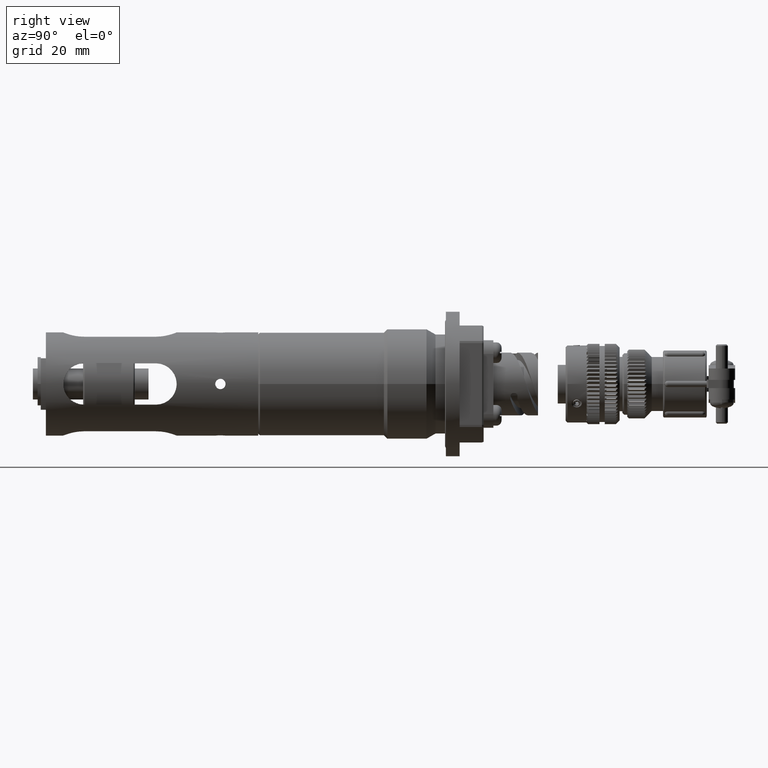
[diagram: clean part render]
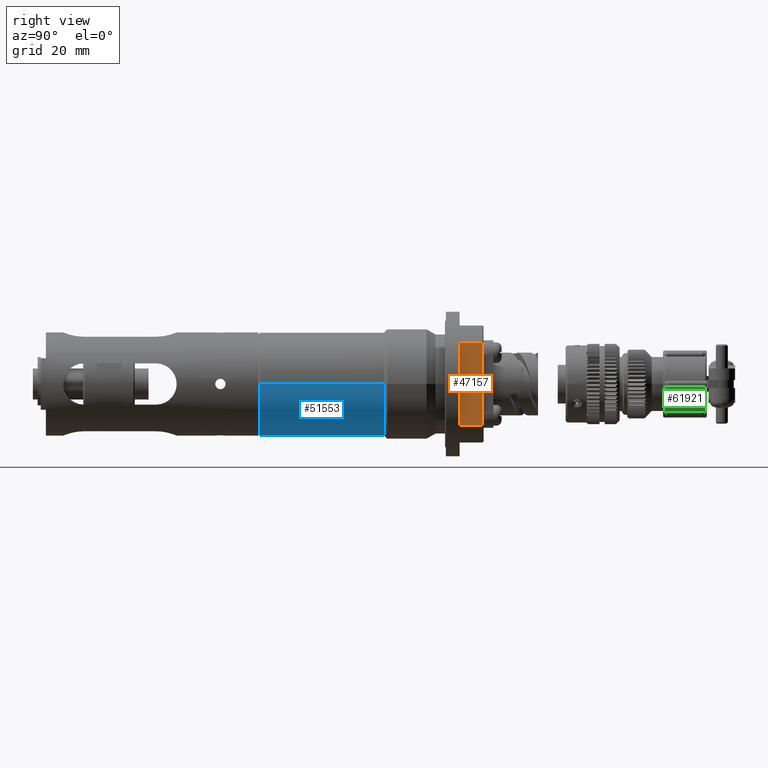
[diagram: same view with three faces highlighted in distinct colors, each labeled with its STEP entity id]
A machine part, right view with three faces highlighted in distinct colors.
Their STEP definitions:

[orange] entity #47157 — the highlighted planar face has unit normal (1, 0, -0).
#425 = LINE ( 'NONE', #68228, #59292 ) ;
#444 = DIRECTION ( 'NONE',  ( 0.0000000000000000000, 1.000000000000000000, 0.0000000000000000000 ) ) ;
#1836 = VERTEX_POINT ( 'NONE', #30222 ) ;
#2936 = DIRECTION ( 'NONE',  ( 0.0000000000000000000, -1.000000000000000000, 0.0000000000000000000 ) ) ;
#3524 = EDGE_CURVE ( 'NONE', #44645, #1836, #40356, .T. ) ;
#5051 = ORIENTED_EDGE ( 'NONE', *, *, #14923, .T. ) ;
#8676 = VECTOR ( 'NONE', #14010, 1000.000000000000000 ) ;
#11076 = ORIENTED_EDGE ( 'NONE', *, *, #31735, .T. ) ;
#13991 = ORIENTED_EDGE ( 'NONE', *, *, #22170, .T. ) ;
#14010 = DIRECTION ( 'NONE',  ( -2.040851148208008245E-16, -0.0000000000000000000, -1.000000000000000000 ) ) ;
#14783 = DIRECTION ( 'NONE',  ( -2.040851148208008245E-16, 0.0000000000000000000, -1.000000000000000000 ) ) ;
#14923 = EDGE_CURVE ( 'NONE', #19964, #64700, #425, .T. ) ;
#18191 = CARTESIAN_POINT ( 'NONE',  ( 17.00000000000000711, 3.999999999999999112, 11.88387772980140156 ) ) ;
#19964 = VERTEX_POINT ( 'NONE', #68073 ) ;
#22170 = EDGE_CURVE ( 'NONE', #64700, #44645, #28583, .T. ) ;
#25536 = VECTOR ( 'NONE', #2936, 1000.000000000000000 ) ;
#28583 = LINE ( 'NONE', #51026, #25536 ) ;
#29561 = CARTESIAN_POINT ( 'NONE',  ( 17.00000000000000711, 10.49999999999998579, 11.88387772980140156 ) ) ;
#29946 = CARTESIAN_POINT ( 'NONE',  ( 17.00000000000000000, 3.999999999999999112, -17.00000000000000355 ) ) ;
#30222 = CARTESIAN_POINT ( 'NONE',  ( 17.00000000000000000, 3.999999999999999112, -11.88387772980136603 ) ) ;
#30359 = CARTESIAN_POINT ( 'NONE',  ( 17.00000000000000000, 3.999999999999999112, -17.00000000000000355 ) ) ;
#31256 = DIRECTION ( 'NONE',  ( 2.040851148208008245E-16, 0.0000000000000000000, 1.000000000000000000 ) ) ;
#31735 = EDGE_CURVE ( 'NONE', #1836, #19964, #53717, .T. ) ;
#33672 = CARTESIAN_POINT ( 'NONE',  ( 17.00000000000000000, 11.00000000000000000, -11.88387772980136603 ) ) ;
#34473 = VECTOR ( 'NONE', #444, 1000.000000000000000 ) ;
#34921 = PLANE ( 'NONE',  #49780 ) ;
#40356 = LINE ( 'NONE', #29946, #8676 ) ;
#44645 = VERTEX_POINT ( 'NONE', #18191 ) ;
#45295 = DIRECTION ( 'NONE',  ( 1.000000000000000000, 0.0000000000000000000, -2.040851148208008245E-16 ) ) ;
#47157 = ADVANCED_FACE ( 'NONE', ( #56997 ), #34921, .T. ) ;
#49780 = AXIS2_PLACEMENT_3D ( 'NONE', #30359, #45295, #14783 ) ;
#51026 = CARTESIAN_POINT ( 'NONE',  ( 17.00000000000000711, 3.999999999999999112, 11.88387772980140156 ) ) ;
#53717 = LINE ( 'NONE', #33672, #34473 ) ;
#56997 = FACE_OUTER_BOUND ( 'NONE', #59515, .T. ) ;
#59292 = VECTOR ( 'NONE', #31256, 1000.000000000000000 ) ;
#59345 = ORIENTED_EDGE ( 'NONE', *, *, #3524, .T. ) ;
#59515 = EDGE_LOOP ( 'NONE', ( #11076, #5051, #13991, #59345 ) ) ;
#64700 = VERTEX_POINT ( 'NONE', #29561 ) ;
#68073 = CARTESIAN_POINT ( 'NONE',  ( 17.00000000000000000, 10.49999999999998579, -11.88387772980136603 ) ) ;
#68228 = CARTESIAN_POINT ( 'NONE',  ( 17.00000000000000000, 10.49999999999998579, -17.00000000000000355 ) ) ;

[blue] entity #51553 — the highlighted cylindrical surface (partial cylindrical patch) has radius 15 mm, axis along (-0, 1, -0).
#206 = EDGE_CURVE ( 'NONE', #41343, #48214, #51985, .T. ) ;
#2528 = DIRECTION ( 'NONE',  ( -1.000000000000000000, -1.156482317317871478E-16, 0.0000000000000000000 ) ) ;
#3475 = LINE ( 'NONE', #46065, #14488 ) ;
#6710 = AXIS2_PLACEMENT_3D ( 'NONE', #47983, #42789, #63856 ) ;
#8334 = AXIS2_PLACEMENT_3D ( 'NONE', #17763, #60325, #2528 ) ;
#9371 = DIRECTION ( 'NONE',  ( -1.224646799147350002E-16, 1.000000000000000000, -0.0000000000000000000 ) ) ;
#9953 = ORIENTED_EDGE ( 'NONE', *, *, #48215, .T. ) ;
#12550 = CYLINDRICAL_SURFACE ( 'NONE', #8334, 15.00000000000000000 ) ;
#13979 = CARTESIAN_POINT ( 'NONE',  ( 15.00000000000001243, -54.00000000000000711, 1.836970198721029983E-15 ) ) ;
#14488 = VECTOR ( 'NONE', #9371, 1000.000000000000000 ) ;
#17763 = CARTESIAN_POINT ( 'NONE',  ( 0.0000000000000000000, 14.88581298024860189, 0.0000000000000000000 ) ) ;
#18099 = FACE_OUTER_BOUND ( 'NONE', #64714, .T. ) ;
#18313 = DIRECTION ( 'NONE',  ( -1.224646799147350002E-16, 1.000000000000000000, -0.0000000000000000000 ) ) ;
#20330 = ORIENTED_EDGE ( 'NONE', *, *, #206, .F. ) ;
#23193 = CARTESIAN_POINT ( 'NONE',  ( 15.00000000000000355, -18.00000000000000000, 1.836970198721029589E-15 ) ) ;
#24255 = CARTESIAN_POINT ( 'NONE',  ( -14.99999999999999112, -54.00000000000000711, 0.0000000000000000000 ) ) ;
#24921 = CARTESIAN_POINT ( 'NONE',  ( 8.436079037292442200E-15, -54.00000000000000711, 0.0000000000000000000 ) ) ;
#28251 = EDGE_CURVE ( 'NONE', #67537, #48214, #3475, .T. ) ;
#31253 = DIRECTION ( 'NONE',  ( -1.224646799147350002E-16, 1.000000000000000000, -0.0000000000000000000 ) ) ;
#36462 = CARTESIAN_POINT ( 'NONE',  ( 15.00000000000000000, 14.88581298024860367, 1.836970198721029589E-15 ) ) ;
#40832 = CARTESIAN_POINT ( 'NONE',  ( -14.99999999999999645, -18.00000000000000711, 0.0000000000000000000 ) ) ;
#41343 = VERTEX_POINT ( 'NONE', #23193 ) ;
#42789 = DIRECTION ( 'NONE',  ( -1.224646799147350002E-16, 1.000000000000000000, -0.0000000000000000000 ) ) ;
#45359 = ORIENTED_EDGE ( 'NONE', *, *, #28251, .T. ) ;
#46065 = CARTESIAN_POINT ( 'NONE',  ( -15.00000000000000000, 14.88581298024860189, 0.0000000000000000000 ) ) ;
#47983 = CARTESIAN_POINT ( 'NONE',  ( 4.027350560361982389E-15, -18.00000000000000355, 0.0000000000000000000 ) ) ;
#48214 = VERTEX_POINT ( 'NONE', #40832 ) ;
#48215 = EDGE_CURVE ( 'NONE', #64904, #67537, #53201, .T. ) ;
#51553 = ADVANCED_FACE ( 'NONE', ( #18099 ), #12550, .T. ) ;
#51653 = LINE ( 'NONE', #36462, #62925 ) ;
#51985 = CIRCLE ( 'NONE', #6710, 15.00000000000000000 ) ;
#52232 = ORIENTED_EDGE ( 'NONE', *, *, #63007, .F. ) ;
#53201 = CIRCLE ( 'NONE', #67416, 15.00000000000000178 ) ;
#60325 = DIRECTION ( 'NONE',  ( -1.224646799147350002E-16, 1.000000000000000000, -0.0000000000000000000 ) ) ;
#62925 = VECTOR ( 'NONE', #31253, 1000.000000000000000 ) ;
#63007 = EDGE_CURVE ( 'NONE', #64904, #41343, #51653, .T. ) ;
#63856 = DIRECTION ( 'NONE',  ( -1.000000000000000000, -2.312964634635742957E-16, 0.0000000000000000000 ) ) ;
#64714 = EDGE_LOOP ( 'NONE', ( #52232, #9953, #45359, #20330 ) ) ;
#64904 = VERTEX_POINT ( 'NONE', #13979 ) ;
#67048 = DIRECTION ( 'NONE',  ( -1.000000000000000000, 0.0000000000000000000, 0.0000000000000000000 ) ) ;
#67416 = AXIS2_PLACEMENT_3D ( 'NONE', #24921, #18313, #67048 ) ;
#67537 = VERTEX_POINT ( 'NONE', #24255 ) ;

[green] entity #61921 — the highlighted cylindrical surface (edge-blend (fillet) strip) has radius 9.8 mm, axis along (-0, 1, -0).
#319 = B_SPLINE_CURVE_WITH_KNOTS ( 'NONE', 3,
 ( #32483, #42538, #10680, #12034, #43225, #53917, #630, #16205, #968, #16557 ),
 .UNSPECIFIED., .F., .F.,
 ( 4, 2, 2, 2, 4 ),
 ( 1.219727444046192488E-19, 0.0003363318376821790366, 0.0006726636753643579648, 0.001008995513046537056, 0.001345327350728715930 ),
 .UNSPECIFIED. ) ;
#630 = CARTESIAN_POINT ( 'NONE',  ( 9.768028886019029855, 64.04211822944506594, -0.7920934178907146350 ) ) ;
#968 = CARTESIAN_POINT ( 'NONE',  ( 9.758673469387751709, 64.35784295236878449, -0.8990506759174090590 ) ) ;
#1272 = CARTESIAN_POINT ( 'NONE',  ( 9.758673469387753485, 64.46999999999997044, -0.8990506759174061724 ) ) ;
#1743 = CARTESIAN_POINT ( 'NONE',  ( 5.308842043080518991, 75.21231819494002480, -8.238123112738909626 ) ) ;
#3287 = VERTEX_POINT ( 'NONE', #31718 ) ;
#4549 = VERTEX_POINT ( 'NONE', #58476 ) ;
#4881 = VERTEX_POINT ( 'NONE', #12217 ) ;
#6447 = CIRCLE ( 'NONE', #59382, 9.799999999999998934 ) ;
#7842 = DIRECTION ( 'NONE',  ( -1.667135000000001352E-16, 1.000000000000000000, -4.747784000000000131E-65 ) ) ;
#8810 = CARTESIAN_POINT ( 'NONE',  ( 5.657937459327918361, 64.46999999999997044, -8.001733793768318392 ) ) ;
#9012 = CARTESIAN_POINT ( 'NONE',  ( 5.657937459327918361, 64.46999999999997044, -8.001733793768318392 ) ) ;
#9240 = EDGE_CURVE ( 'NONE', #4549, #34208, #319, .T. ) ;
#10000 = CARTESIAN_POINT ( 'NONE',  ( 5.657937459327905039, 64.35773656091123485, -8.001733793768329051 ) ) ;
#10680 = CARTESIAN_POINT ( 'NONE',  ( 9.796704260596774461, 63.64258686417436905, -0.2739742495698926361 ) ) ;
#12034 = CARTESIAN_POINT ( 'NONE',  ( 9.788844916675895291, 63.72768180505988767, -0.4785305176170593922 ) ) ;
#12217 = CARTESIAN_POINT ( 'NONE',  ( 4.943237353782909516, 75.31999999999996476, -8.461938576009950808 ) ) ;
#12478 = CARTESIAN_POINT ( 'NONE',  ( 5.569987465073344524, 74.89788177055484653, -8.063314451247311609 ) ) ;
#13493 = ORIENTED_EDGE ( 'NONE', *, *, #67583, .T. ) ;
#14097 = CARTESIAN_POINT ( 'NONE',  ( 5.657937459327928131, 74.58215704763115639, -8.001733793768313063 ) ) ;
#14326 = DIRECTION ( 'NONE',  ( -1.667135000000001352E-16, 1.000000000000000000, -4.747784000000000131E-65 ) ) ;
#14440 = CARTESIAN_POINT ( 'NONE',  ( 5.657937459327932572, 74.46999999999998465, -8.001733793768311287 ) ) ;
#14790 = CARTESIAN_POINT ( 'NONE',  ( 5.135620790408796488, 75.29741313582557893, -8.347207638255042639 ) ) ;
#16199 = CARTESIAN_POINT ( 'NONE',  ( 5.322614688609828448, 63.71238537277454128, -8.230087888737976698 ) ) ;
#16205 = CARTESIAN_POINT ( 'NONE',  ( 9.760803937229988847, 64.24650034237595264, -0.8766451960306291813 ) ) ;
#16557 = CARTESIAN_POINT ( 'NONE',  ( 9.758673469387753485, 64.46999999999997044, -0.8990506759174061724 ) ) ;
#16740 = VERTEX_POINT ( 'NONE', #66909 ) ;
#19709 = CARTESIAN_POINT ( 'NONE',  ( 5.517993899794545243, 63.94755910298128043, -8.099252235038296277 ) ) ;
#19996 = EDGE_CURVE ( 'NONE', #61601, #4881, #6447, .T. ) ;
#20748 = AXIS2_PLACEMENT_3D ( 'NONE', #62443, #67275, #42060 ) ;
#24113 = FACE_OUTER_BOUND ( 'NONE', #44940, .T. ) ;
#24657 = EDGE_CURVE ( 'NONE', #46788, #16740, #60976, .T. ) ;
#24874 = CARTESIAN_POINT ( 'NONE',  ( 5.040082980882517383, 75.31999999999997897, -8.405363960497320264 ) ) ;
#24993 = CARTESIAN_POINT ( 'NONE',  ( 5.657937459327932572, 69.46999999999997044, -8.001733793768309511 ) ) ;
#28013 = B_SPLINE_CURVE_WITH_KNOTS ( 'NONE', 3,
 ( #9012, #10000, #51184, #67066, #19709, #16199, #31777, #37353 ),
 .UNSPECIFIED., .F., .F.,
 ( 4, 2, 2, 4 ),
 ( 0.0000000000000000000, 0.0003320068534653735476, 0.0006640137069307470953, 0.001328027413861492673 ),
 .UNSPECIFIED. ) ;
#28130 = ORIENTED_EDGE ( 'NONE', *, *, #19996, .F. ) ;
#28808 = AXIS2_PLACEMENT_3D ( 'NONE', #56895, #14326, #35816 ) ;
#29344 = VECTOR ( 'NONE', #40911, 1000.000000000000000 ) ;
#31718 = CARTESIAN_POINT ( 'NONE',  ( 4.943237353782812704, 63.61999999999998323, -8.461938576010009427 ) ) ;
#31777 = CARTESIAN_POINT ( 'NONE',  ( 5.137112425917512937, 63.61999999999996902, -8.348681963481453749 ) ) ;
#32483 = CARTESIAN_POINT ( 'NONE',  ( 9.799872448979590089, 63.61999999999998323, -0.04999983730703828205 ) ) ;
#34055 = ORIENTED_EDGE ( 'NONE', *, *, #24657, .T. ) ;
#34208 = VERTEX_POINT ( 'NONE', #1272 ) ;
#34273 = ORIENTED_EDGE ( 'NONE', *, *, #54202, .F. ) ;
#34512 = DIRECTION ( 'NONE',  ( 1.000000000000000000, 0.0000000000000000000, -1.344668105003893333E-80 ) ) ;
#34640 = DIRECTION ( 'NONE',  ( 1.667135000000001352E-16, -1.000000000000000000, 4.747784000000000975E-65 ) ) ;
#34755 = B_SPLINE_CURVE_WITH_KNOTS ( 'NONE', 3,
 ( #46316, #24874, #14790, #1743, #67356, #51458, #12478, #35596, #14097, #14440 ),
 .UNSPECIFIED., .F., .F.,
 ( 4, 2, 2, 2, 4 ),
 ( 6.605630197227461848E-17, 0.0003363318376822047322, 0.0006726636753643433280, 0.001008995513046482195, 0.001345327350728620737 ),
 .UNSPECIFIED. ) ;
#35596 = CARTESIAN_POINT ( 'NONE',  ( 5.639598978483115310, 74.69349965762397403, -8.014781572985013369 ) ) ;
#35816 = DIRECTION ( 'NONE',  ( -1.000000000000000000, 0.0000000000000000000, 0.0000000000000000000 ) ) ;
#37353 = CARTESIAN_POINT ( 'NONE',  ( 4.943237353782812704, 63.61999999999998323, -8.461938576010009427 ) ) ;
#40589 = EDGE_CURVE ( 'NONE', #4549, #3287, #63022, .T. ) ;
#40911 = DIRECTION ( 'NONE',  ( -1.667135000000001352E-16, 1.000000000000000000, -4.747784000000000975E-65 ) ) ;
#42060 = DIRECTION ( 'NONE',  ( -1.000000000000000000, 0.0000000000000000000, 0.0000000000000000000 ) ) ;
#42538 = CARTESIAN_POINT ( 'NONE',  ( 9.799300208286112479, 63.61999999999998323, -0.1621579183771263699 ) ) ;
#43225 = CARTESIAN_POINT ( 'NONE',  ( 9.783550887897803250, 63.79100872262967670, -0.5729262688335005071 ) ) ;
#44940 = EDGE_LOOP ( 'NONE', ( #66580, #34273, #34055, #54666, #28130, #13493, #45224 ) ) ;
#45216 = CYLINDRICAL_SURFACE ( 'NONE', #20748, 9.800000000000000711 ) ;
#45224 = ORIENTED_EDGE ( 'NONE', *, *, #9240, .F. ) ;
#46316 = CARTESIAN_POINT ( 'NONE',  ( 4.943237353782909516, 75.31999999999996476, -8.461938576009950808 ) ) ;
#46788 = VERTEX_POINT ( 'NONE', #8810 ) ;
#51184 = CARTESIAN_POINT ( 'NONE',  ( 5.639917951195212886, 64.24758007956062045, -8.014558341227303373 ) ) ;
#51458 = CARTESIAN_POINT ( 'NONE',  ( 5.517867929773101920, 74.99258021074508918, -8.099336145338508430 ) ) ;
#51827 = EDGE_CURVE ( 'NONE', #4881, #16740, #34755, .T. ) ;
#53917 = CARTESIAN_POINT ( 'NONE',  ( 9.773164820539234299, 63.94741978925481618, -0.7289457292416561263 ) ) ;
#54202 = EDGE_CURVE ( 'NONE', #46788, #3287, #28013, .T. ) ;
#54666 = ORIENTED_EDGE ( 'NONE', *, *, #51827, .F. ) ;
#56258 = CARTESIAN_POINT ( 'NONE',  ( 4.758748428346639795E-16, 75.31999999999996476, -5.792295999999999654E-64 ) ) ;
#56895 = CARTESIAN_POINT ( 'NONE',  ( 4.758748428346648670E-16, 63.61999999999998323, -2.373893599999986518E-65 ) ) ;
#58476 = CARTESIAN_POINT ( 'NONE',  ( 9.799872448979590089, 63.61999999999998323, -0.04999983730703828205 ) ) ;
#59382 = AXIS2_PLACEMENT_3D ( 'NONE', #56258, #7842, #34512 ) ;
#59870 = LINE ( 'NONE', #65684, #63704 ) ;
#60976 = LINE ( 'NONE', #24993, #29344 ) ;
#61601 = VERTEX_POINT ( 'NONE', #61878 ) ;
#61878 = CARTESIAN_POINT ( 'NONE',  ( 9.758673469387753485, 75.31999999999996476, -0.8990506759174053952 ) ) ;
#61921 = ADVANCED_FACE ( 'NONE', ( #24113 ), #45216, .T. ) ;
#62443 = CARTESIAN_POINT ( 'NONE',  ( 4.758748428346640781E-16, 69.46999999999997044, -3.014843000000000133E-64 ) ) ;
#63022 = CIRCLE ( 'NONE', #28808, 9.800000000000000711 ) ;
#63704 = VECTOR ( 'NONE', #34640, 1000.000000000000000 ) ;
#65684 = CARTESIAN_POINT ( 'NONE',  ( 9.758673469387753485, 69.46999999999997044, -0.8990506759174032858 ) ) ;
#66580 = ORIENTED_EDGE ( 'NONE', *, *, #40589, .T. ) ;
#66909 = CARTESIAN_POINT ( 'NONE',  ( 5.657937459327932572, 74.46999999999998465, -8.001733793768311287 ) ) ;
#67066 = CARTESIAN_POINT ( 'NONE',  ( 5.569929315136270986, 64.04180481050752860, -8.063355835229883084 ) ) ;
#67275 = DIRECTION ( 'NONE',  ( -1.667135000000001352E-16, 1.000000000000000000, -4.747784000000000131E-65 ) ) ;
#67356 = CARTESIAN_POINT ( 'NONE',  ( 5.387944147254208005, 75.14899127737025708, -8.186340473720504107 ) ) ;
#67583 = EDGE_CURVE ( 'NONE', #61601, #34208, #59870, .T. ) ;